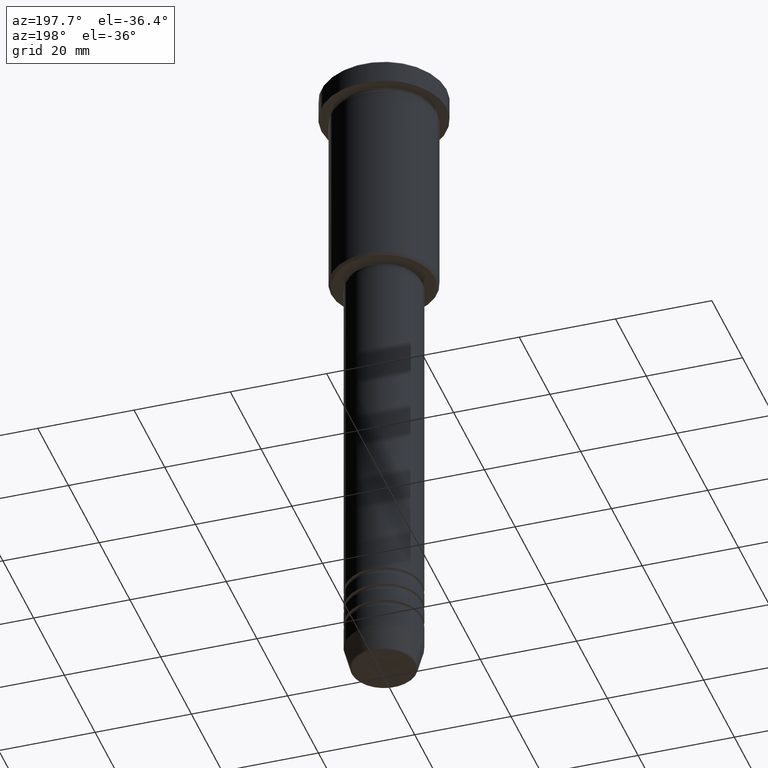
[diagram: clean part render]
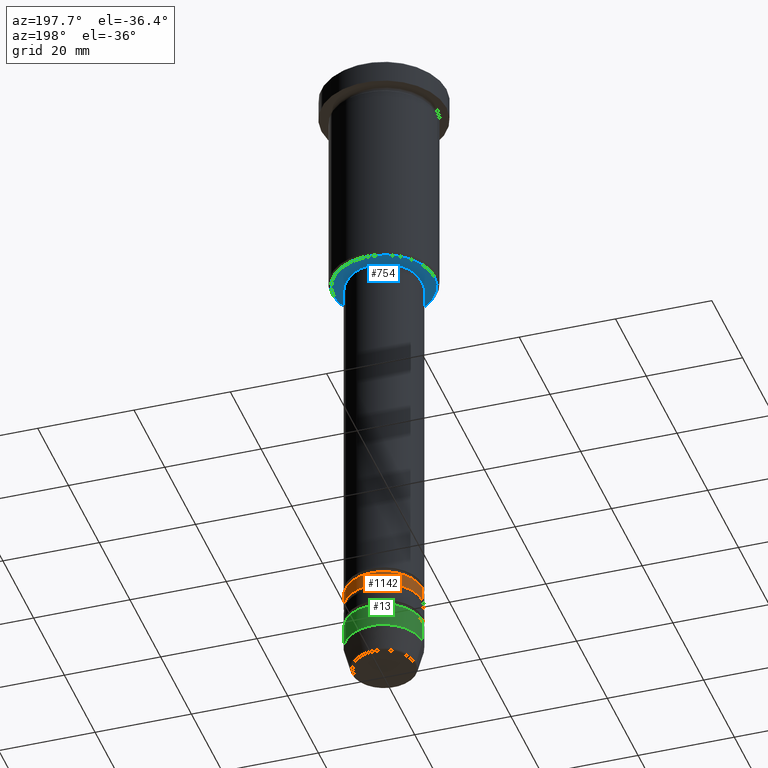
[diagram: same view with three faces highlighted in distinct colors, each labeled with its STEP entity id]
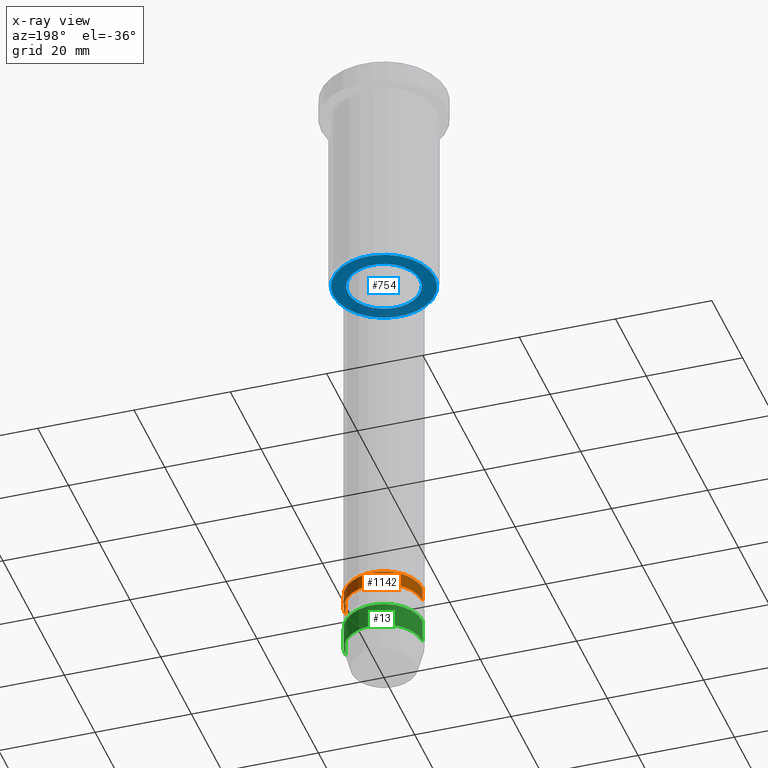
[diagram: x-ray of the same camera — body ghosted, the three highlighted faces saturated]
A machine part, auxiliary view with three faces highlighted in distinct colors.
The next image is the same camera in x-ray (body ghosted, the three faces saturated) — at least one of them is partly hidden behind the body in this view.
Their STEP definitions:

[orange] entity #1142 — the highlighted cylindrical surface (partial cylindrical patch) has radius 8 mm, axis along (-0, -0, 1).
#32 = EDGE_CURVE ( 'NONE', #217, #638, #1043, .T. ) ;
#151 = ORIENTED_EDGE ( 'NONE', *, *, #277, .F. ) ;
#209 = AXIS2_PLACEMENT_3D ( 'NONE', #910, #1107, #744 ) ;
#217 = VERTEX_POINT ( 'NONE', #1076 ) ;
#225 = DIRECTION ( 'NONE',  ( 1.000000000000000000, 0.000000000000000000, 0.000000000000000000 ) ) ;
#257 = ORIENTED_EDGE ( 'NONE', *, *, #1100, .T. ) ;
#277 = EDGE_CURVE ( 'NONE', #316, #217, #1017, .T. ) ;
#290 = CARTESIAN_POINT ( 'NONE',  ( -8.000000000000001776, 9.797174393178827630E-16, 0.000000000000000000 ) ) ;
#297 = DIRECTION ( 'NONE',  ( -0.000000000000000000, -0.000000000000000000, 1.000000000000000000 ) ) ;
#316 = VERTEX_POINT ( 'NONE', #873 ) ;
#337 = VECTOR ( 'NONE', #383, 1000.000000000000000 ) ;
#346 = ORIENTED_EDGE ( 'NONE', *, *, #32, .F. ) ;
#383 = DIRECTION ( 'NONE',  ( -0.000000000000000000, -0.000000000000000000, 1.000000000000000000 ) ) ;
#393 = FACE_OUTER_BOUND ( 'NONE', #978, .T. ) ;
#398 = CARTESIAN_POINT ( 'NONE',  ( 0.000000000000000000, 0.000000000000000000, 0.000000000000000000 ) ) ;
#429 = CIRCLE ( 'NONE', #209, 8.000000000000003553 ) ;
#526 = AXIS2_PLACEMENT_3D ( 'NONE', #398, #766, #225 ) ;
#555 = ORIENTED_EDGE ( 'NONE', *, *, #975, .T. ) ;
#638 = VERTEX_POINT ( 'NONE', #663 ) ;
#663 = CARTESIAN_POINT ( 'NONE',  ( -8.000000000000000000, 9.797174393178827630E-16, -122.0000000000000000 ) ) ;
#744 = DIRECTION ( 'NONE',  ( 1.000000000000000000, 0.000000000000000000, 0.000000000000000000 ) ) ;
#766 = DIRECTION ( 'NONE',  ( -0.000000000000000000, -0.000000000000000000, 1.000000000000000000 ) ) ;
#799 = VERTEX_POINT ( 'NONE', #1067 ) ;
#821 = CARTESIAN_POINT ( 'NONE',  ( 8.000000000000001776, 0.000000000000000000, 0.000000000000000000 ) ) ;
#837 = DIRECTION ( 'NONE',  ( 1.000000000000000000, 0.000000000000000000, 0.000000000000000000 ) ) ;
#850 = VECTOR ( 'NONE', #1099, 1000.000000000000000 ) ;
#873 = CARTESIAN_POINT ( 'NONE',  ( 8.000000000000003553, 0.000000000000000000, -125.0000000000000000 ) ) ;
#910 = CARTESIAN_POINT ( 'NONE',  ( 0.000000000000000000, 0.000000000000000000, -125.0000000000000000 ) ) ;
#944 = CARTESIAN_POINT ( 'NONE',  ( 0.000000000000000000, 0.000000000000000000, -122.0000000000000000 ) ) ;
#975 = EDGE_CURVE ( 'NONE', #316, #799, #429, .T. ) ;
#978 = EDGE_LOOP ( 'NONE', ( #555, #257, #346, #151 ) ) ;
#1017 = LINE ( 'NONE', #821, #850 ) ;
#1043 = CIRCLE ( 'NONE', #1064, 8.000000000000000000 ) ;
#1064 = AXIS2_PLACEMENT_3D ( 'NONE', #944, #297, #837 ) ;
#1067 = CARTESIAN_POINT ( 'NONE',  ( -8.000000000000003553, 9.797174393178829602E-16, -125.0000000000000000 ) ) ;
#1076 = CARTESIAN_POINT ( 'NONE',  ( 8.000000000000000000, 0.000000000000000000, -122.0000000000000000 ) ) ;
#1099 = DIRECTION ( 'NONE',  ( -0.000000000000000000, -0.000000000000000000, 1.000000000000000000 ) ) ;
#1100 = EDGE_CURVE ( 'NONE', #799, #638, #1109, .T. ) ;
#1107 = DIRECTION ( 'NONE',  ( -0.000000000000000000, -0.000000000000000000, 1.000000000000000000 ) ) ;
#1109 = LINE ( 'NONE', #290, #337 ) ;
#1125 = CYLINDRICAL_SURFACE ( 'NONE', #526, 8.000000000000001776 ) ;
#1142 = ADVANCED_FACE ( 'NONE', ( #393 ), #1125, .T. ) ;

[blue] entity #754 — the highlighted planar face has unit normal (0, 0, -1).
#5 = CARTESIAN_POINT ( 'NONE',  ( 0.000000000000000000, 0.000000000000000000, -46.00000000000000711 ) ) ;
#17 = VERTEX_POINT ( 'NONE', #655 ) ;
#36 = CARTESIAN_POINT ( 'NONE',  ( 0.000000000000000000, 0.000000000000000000, -46.00000000000000000 ) ) ;
#41 = PLANE ( 'NONE',  #128 ) ;
#49 = AXIS2_PLACEMENT_3D ( 'NONE', #5, #368, #740 ) ;
#61 = ORIENTED_EDGE ( 'NONE', *, *, #661, .T. ) ;
#67 = CIRCLE ( 'NONE', #627, 10.49999999999999467 ) ;
#128 = AXIS2_PLACEMENT_3D ( 'NONE', #521, #891, #800 ) ;
#144 = FACE_OUTER_BOUND ( 'NONE', #997, .T. ) ;
#163 = CARTESIAN_POINT ( 'NONE',  ( 0.000000000000000000, 0.000000000000000000, -46.00000000000000000 ) ) ;
#226 = EDGE_CURVE ( 'NONE', #17, #1003, #1029, .T. ) ;
#265 = AXIS2_PLACEMENT_3D ( 'NONE', #523, #733, #847 ) ;
#274 = DIRECTION ( 'NONE',  ( -1.000000000000000000, 0.000000000000000000, 0.000000000000000000 ) ) ;
#349 = ORIENTED_EDGE ( 'NONE', *, *, #226, .T. ) ;
#368 = DIRECTION ( 'NONE',  ( -0.000000000000000000, -0.000000000000000000, 1.000000000000000000 ) ) ;
#491 = EDGE_CURVE ( 'NONE', #1003, #17, #571, .T. ) ;
#521 = CARTESIAN_POINT ( 'NONE',  ( 0.000000000000000000, 11.00000000000000000, -46.00000000000000000 ) ) ;
#523 = CARTESIAN_POINT ( 'NONE',  ( 0.000000000000000000, 0.000000000000000000, -46.00000000000000711 ) ) ;
#540 = DIRECTION ( 'NONE',  ( -1.000000000000000000, 0.000000000000000000, 0.000000000000000000 ) ) ;
#561 = CARTESIAN_POINT ( 'NONE',  ( 7.500000000000000000, 0.000000000000000000, -46.00000000000000711 ) ) ;
#571 = CIRCLE ( 'NONE', #49, 7.500000000000000000 ) ;
#599 = CARTESIAN_POINT ( 'NONE',  ( -10.49999999999999467, 1.316495309083404420E-15, -46.00000000000000000 ) ) ;
#627 = AXIS2_PLACEMENT_3D ( 'NONE', #163, #652, #274 ) ;
#636 = VERTEX_POINT ( 'NONE', #599 ) ;
#652 = DIRECTION ( 'NONE',  ( 0.000000000000000000, 0.000000000000000000, -1.000000000000000000 ) ) ;
#655 = CARTESIAN_POINT ( 'NONE',  ( -7.500000000000000000, 9.184850993605147944E-16, -46.00000000000000711 ) ) ;
#661 = EDGE_CURVE ( 'NONE', #1080, #636, #834, .T. ) ;
#686 = DIRECTION ( 'NONE',  ( 0.000000000000000000, 0.000000000000000000, -1.000000000000000000 ) ) ;
#696 = FACE_BOUND ( 'NONE', #731, .T. ) ;
#702 = AXIS2_PLACEMENT_3D ( 'NONE', #36, #686, #540 ) ;
#720 = ORIENTED_EDGE ( 'NONE', *, *, #491, .T. ) ;
#731 = EDGE_LOOP ( 'NONE', ( #720, #349 ) ) ;
#733 = DIRECTION ( 'NONE',  ( -0.000000000000000000, -0.000000000000000000, 1.000000000000000000 ) ) ;
#740 = DIRECTION ( 'NONE',  ( 1.000000000000000000, 0.000000000000000000, 0.000000000000000000 ) ) ;
#754 = ADVANCED_FACE ( 'NONE', ( #144, #696 ), #41, .T. ) ;
#800 = DIRECTION ( 'NONE',  ( -1.000000000000000000, 0.000000000000000000, -0.000000000000000000 ) ) ;
#834 = CIRCLE ( 'NONE', #702, 10.49999999999999467 ) ;
#846 = CARTESIAN_POINT ( 'NONE',  ( 10.49999999999999467, 0.000000000000000000, -46.00000000000000000 ) ) ;
#847 = DIRECTION ( 'NONE',  ( 1.000000000000000000, 0.000000000000000000, 0.000000000000000000 ) ) ;
#891 = DIRECTION ( 'NONE',  ( 0.000000000000000000, 0.000000000000000000, -1.000000000000000000 ) ) ;
#932 = EDGE_CURVE ( 'NONE', #636, #1080, #67, .T. ) ;
#997 = EDGE_LOOP ( 'NONE', ( #61, #1016 ) ) ;
#1003 = VERTEX_POINT ( 'NONE', #561 ) ;
#1016 = ORIENTED_EDGE ( 'NONE', *, *, #932, .T. ) ;
#1029 = CIRCLE ( 'NONE', #265, 7.500000000000000000 ) ;
#1080 = VERTEX_POINT ( 'NONE', #846 ) ;

[green] entity #13 — the highlighted cylindrical surface (partial cylindrical patch) has radius 8 mm, axis along (-0, -0, 1).
#13 = ADVANCED_FACE ( 'NONE', ( #1007 ), #645, .T. ) ;
#30 = ORIENTED_EDGE ( 'NONE', *, *, #227, .F. ) ;
#66 = CIRCLE ( 'NONE', #240, 8.000000000000000000 ) ;
#93 = DIRECTION ( 'NONE',  ( 1.000000000000000000, 0.000000000000000000, 0.000000000000000000 ) ) ;
#110 = DIRECTION ( 'NONE',  ( 1.000000000000000000, 0.000000000000000000, 0.000000000000000000 ) ) ;
#185 = ORIENTED_EDGE ( 'NONE', *, *, #1131, .T. ) ;
#190 = CARTESIAN_POINT ( 'NONE',  ( 0.000000000000000000, 0.000000000000000000, 0.000000000000000000 ) ) ;
#198 = VERTEX_POINT ( 'NONE', #938 ) ;
#205 = DIRECTION ( 'NONE',  ( 1.000000000000000000, 0.000000000000000000, 0.000000000000000000 ) ) ;
#218 = DIRECTION ( 'NONE',  ( -0.000000000000000000, -0.000000000000000000, 1.000000000000000000 ) ) ;
#227 = EDGE_CURVE ( 'NONE', #435, #729, #1160, .T. ) ;
#240 = AXIS2_PLACEMENT_3D ( 'NONE', #629, #1092, #110 ) ;
#244 = AXIS2_PLACEMENT_3D ( 'NONE', #506, #643, #205 ) ;
#248 = EDGE_CURVE ( 'NONE', #781, #435, #567, .T. ) ;
#285 = CARTESIAN_POINT ( 'NONE',  ( 8.000000000000000000, 0.000000000000000000, 0.000000000000000000 ) ) ;
#435 = VERTEX_POINT ( 'NONE', #1143 ) ;
#506 = CARTESIAN_POINT ( 'NONE',  ( 0.000000000000000000, 0.000000000000000000, -130.0000000000000000 ) ) ;
#553 = DIRECTION ( 'NONE',  ( -0.000000000000000000, -0.000000000000000000, 1.000000000000000000 ) ) ;
#566 = EDGE_CURVE ( 'NONE', #781, #198, #66, .T. ) ;
#567 = LINE ( 'NONE', #285, #1065 ) ;
#629 = CARTESIAN_POINT ( 'NONE',  ( 0.000000000000000000, 0.000000000000000000, -135.0000000000000000 ) ) ;
#643 = DIRECTION ( 'NONE',  ( -0.000000000000000000, -0.000000000000000000, 1.000000000000000000 ) ) ;
#645 = CYLINDRICAL_SURFACE ( 'NONE', #651, 8.000000000000000000 ) ;
#651 = AXIS2_PLACEMENT_3D ( 'NONE', #190, #553, #93 ) ;
#711 = CARTESIAN_POINT ( 'NONE',  ( -8.000000000000000000, 9.797174393178825657E-16, -130.0000000000000000 ) ) ;
#729 = VERTEX_POINT ( 'NONE', #711 ) ;
#747 = CARTESIAN_POINT ( 'NONE',  ( -8.000000000000000000, 9.797174393178825657E-16, 0.000000000000000000 ) ) ;
#781 = VERTEX_POINT ( 'NONE', #871 ) ;
#790 = ORIENTED_EDGE ( 'NONE', *, *, #248, .F. ) ;
#854 = VECTOR ( 'NONE', #218, 1000.000000000000000 ) ;
#871 = CARTESIAN_POINT ( 'NONE',  ( 8.000000000000000000, 0.000000000000000000, -135.0000000000000000 ) ) ;
#938 = CARTESIAN_POINT ( 'NONE',  ( -8.000000000000000000, 9.797174393178825657E-16, -135.0000000000000000 ) ) ;
#943 = LINE ( 'NONE', #747, #854 ) ;
#1004 = DIRECTION ( 'NONE',  ( -0.000000000000000000, -0.000000000000000000, 1.000000000000000000 ) ) ;
#1007 = FACE_OUTER_BOUND ( 'NONE', #1054, .T. ) ;
#1054 = EDGE_LOOP ( 'NONE', ( #1183, #185, #30, #790 ) ) ;
#1065 = VECTOR ( 'NONE', #1004, 1000.000000000000000 ) ;
#1092 = DIRECTION ( 'NONE',  ( -0.000000000000000000, -0.000000000000000000, 1.000000000000000000 ) ) ;
#1131 = EDGE_CURVE ( 'NONE', #198, #729, #943, .T. ) ;
#1143 = CARTESIAN_POINT ( 'NONE',  ( 8.000000000000000000, 0.000000000000000000, -130.0000000000000000 ) ) ;
#1160 = CIRCLE ( 'NONE', #244, 8.000000000000000000 ) ;
#1183 = ORIENTED_EDGE ( 'NONE', *, *, #566, .T. ) ;